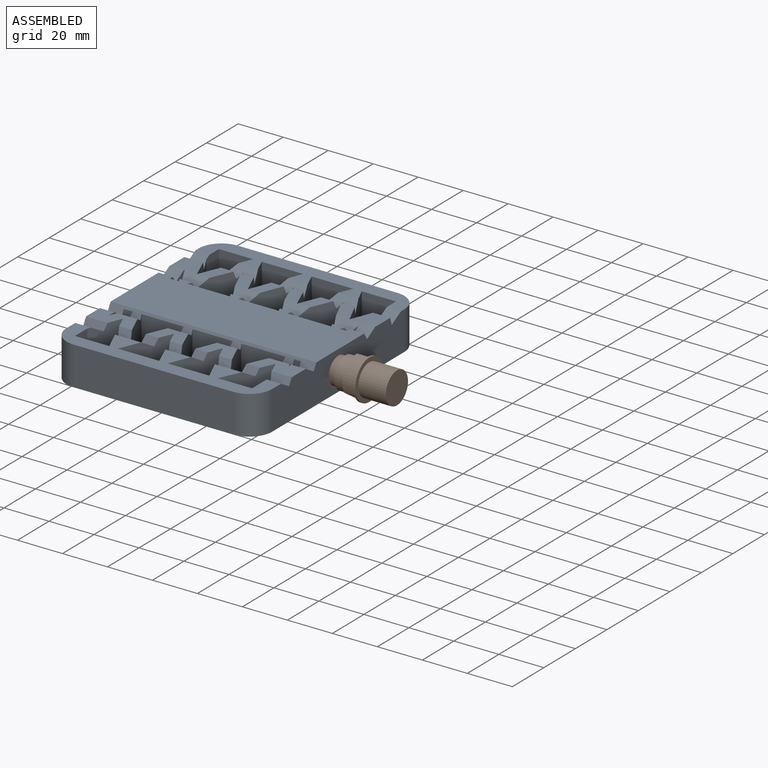
[diagram: assembled view]
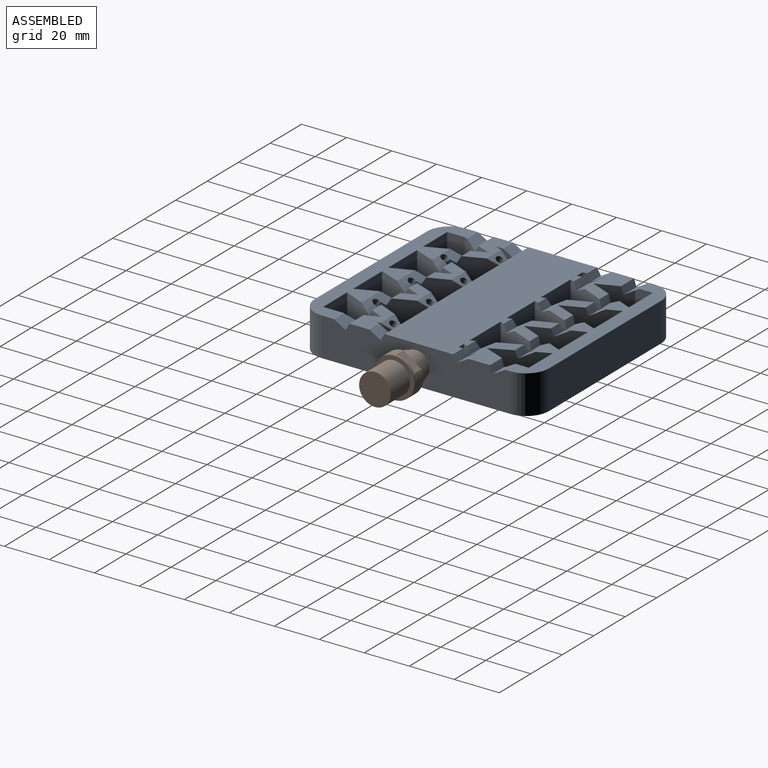
[diagram: assembled view, second angle]
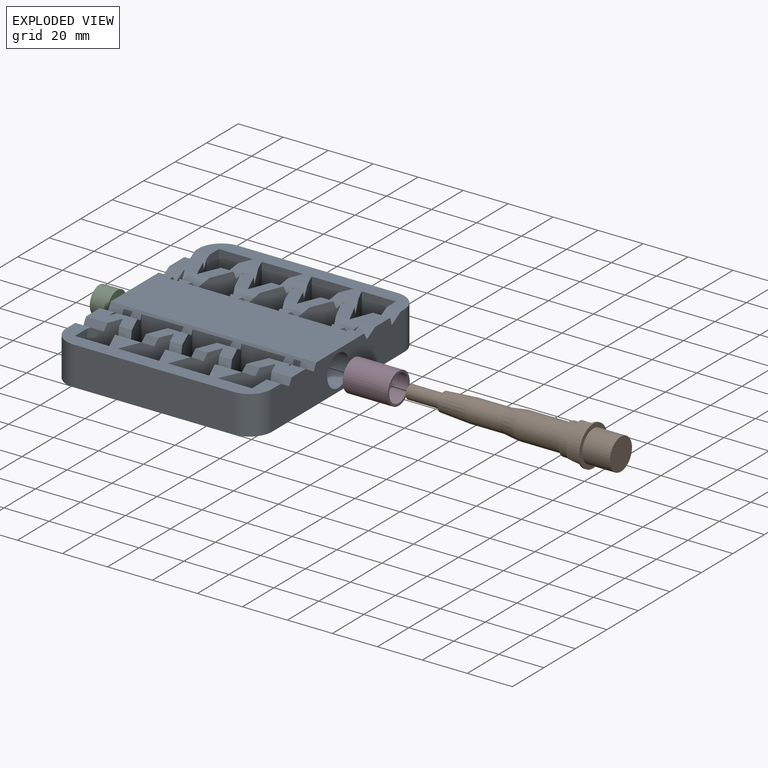
[diagram: exploded view]
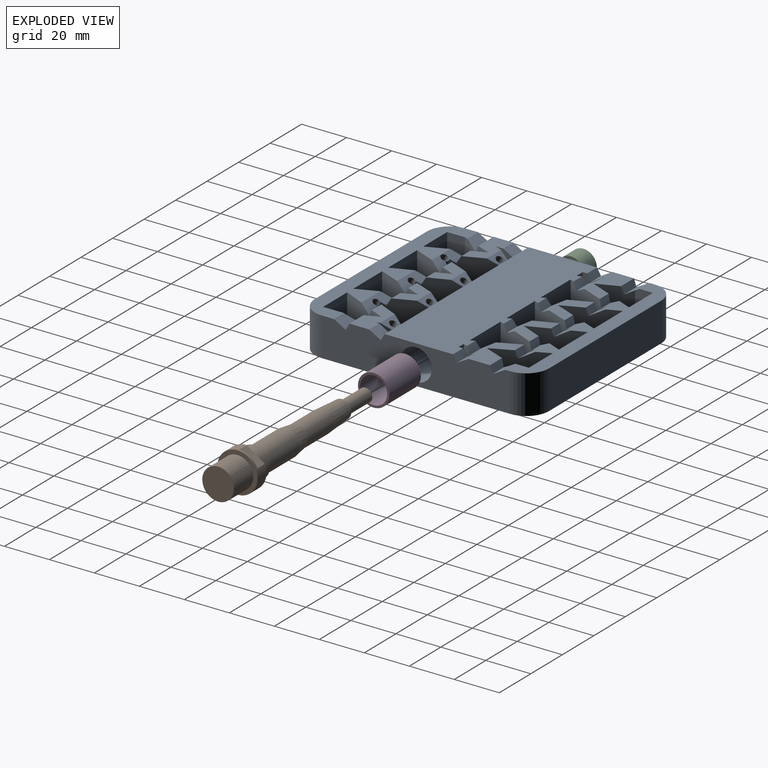
[diagram: exploded view, second angle]
ASSEMBLY  parts=4 mates=5
PART A: 145 faces, bbox 91.8x104.5x19.2 mm
  f0: plane 3.65x2.42mm, normal (0.91,-0.41,0), area 3.6mm2, adj f62,f86,f137
  f1: plane 17.15x12.63mm, normal (-0.93,-0.37,0), area 198.4mm2, adj f35,f61,f77,f86,f105,f106,f137
  f2: plane 22.31x17.15mm, normal (-0.92,-0.39,0), area 380mm2, adj f9,f34,f66,f79,f85,f86,f110,f139
  f3: plane 3.23x2.16mm, normal (0.93,-0.37,0), area 3.6mm2, adj f68,f86,f136
  f4: plane 22.31x17.15mm, normal (-0.92,-0.39,0), area 378.6mm2, adj f32,f67,f69,f85,f86,f107,f108,f136
  f5: plane 3.23x2.13mm, normal (0.92,-0.39,0), area 3.5mm2, adj f71,f86,f138
  f6: plane 22.31x17.15mm, normal (-0.93,-0.37,0), area 375.9mm2, adj f8,f33,f70,f81,f85,f86,f104,f138
  f7: plane 3.13x2.19mm, normal (0.93,-0.37,0), area 2.8mm2, adj f65,f86,f139
  f8: plane 15.44x5.17mm, normal (0,0.5,0.87), area 64.4mm2, adj f6,f51,f53,f79,f85,f103,f104,f134
  f9: plane 16.51x5.17mm, normal (0,0.5,0.87), area 68.8mm2, adj f2,f54,f56,f61,f85,f110,f111,f135
  f10: plane 83.82x17.15mm, normal (1,0,0), area 1241.4mm2, adj f35,f39,f40,f41,f85,f86,f87,f93
  f11: plane 22.31x17.15mm, normal (-0.92,0.39,0), area 403.1mm2, adj f25,f38,f40,f44,f86,f101,f102
  f12: plane 17.15x7.89mm, normal (0.93,-0.37,0), area 135.1mm2, adj f26,f41,f45,f86,f118,f119
  f13: plane 17.15x7.89mm, normal (1,0,0), area 134.2mm2, adj f27,f40,f46,f86,f95
  f14: plane 22.31x17.15mm, normal (-0.92,0.39,0), area 403.1mm2, adj f27,f36,f40,f46,f86,f113,f114
  f15: plane 22.31x17.15mm, normal (0.92,-0.39,0), area 394.7mm2, adj f28,f36,f41,f47,f86,f113,f114,f127
  f16: plane 22.31x17.15mm, normal (-0.93,0.37,0), area 400.2mm2, adj f29,f37,f40,f48,f86,f121,f122
  f17: plane 17.15x9.68mm, normal (1,0,0), area 155.8mm2, adj f18,f36,f41,f82,f86,f96,f97
  f18: plane 17.15x9.68mm, normal (-0.93,-0.37,0), area 167.9mm2, adj f17,f36,f41,f82,f86,f127,f128
  f19: plane 22.31x17.15mm, normal (0.93,-0.37,0), area 391.8mm2, adj f20,f37,f41,f83,f86,f115,f116,f121
  f20: plane 22.31x17.15mm, normal (-0.93,-0.37,0), area 391.8mm2, adj f19,f38,f41,f83,f86,f120,f121,f125
  f21: plane 22.31x17.15mm, normal (0.92,-0.39,0), area 394.7mm2, adj f22,f38,f41,f84,f86,f101,f102,f125
  f22: plane 22.31x17.15mm, normal (-0.91,-0.41,0), area 399.4mm2, adj f21,f39,f41,f84,f86,f100,f101,f118
  f23: plane 17.15x9.68mm, normal (-1,0,0), area 162.1mm2, adj f24,f40,f72,f86,f123
  f24: plane 17.15x12.63mm, normal (-0.93,0.37,0), area 225.5mm2, adj f23,f30,f39,f86,f123,f124
  f25: plane 22.31x17.15mm, normal (0.93,0.37,0), area 400.2mm2, adj f11,f38,f40,f44,f86,f120,f121
  f26: plane 17.15x7.89mm, normal (-1,0,0), area 125.3mm2, adj f12,f41,f45,f86,f117,f118
  f27: plane 17.15x14.41mm, normal (0.93,0.37,0), area 255.5mm2, adj f13,f14,f36,f86,f94,f95
  f28: plane 22.31x17.15mm, normal (-0.92,-0.39,0), area 394.7mm2, adj f15,f37,f41,f47,f86,f112,f113,f115
  f29: plane 22.31x17.15mm, normal (0.92,0.39,0), area 403.1mm2, adj f16,f37,f40,f48,f86,f112,f113
  f30: plane 22.31x17.15mm, normal (0.91,0.41,0), area 407.9mm2, adj f24,f39,f40,f72,f86,f100,f101
  f31: plane 83.82x17.15mm, normal (-1,0,0), area 1282.2mm2, adj f32,f36,f40,f41,f85,f86,f87,f88
  f32: plane 20.41x8.75mm, normal (0,0,1), area 144.5mm2, adj f4,f31,f49,f50,f67,f76,f88,f92
  f33: plane 16.22x8.75mm, normal (0,0,1), area 94.7mm2, adj f6,f53,f58,f70,f90,f104,f109
  f34: plane 16.22x8.75mm, normal (0,0,1), area 94.7mm2, adj f2,f51,f54,f79,f89,f103,f110
  f35: plane 20.18x8.75mm, normal (0,0,1), area 142.4mm2, adj f1,f10,f56,f61,f63,f78,f91,f93
  f36: plane 21.82x9.55mm, normal (0,0,1), area 151.9mm2, adj f14,f15,f17,f18,f27,f31,f94,f97
  f37: plane 18.97x9.55mm, normal (0,0,1), area 106.4mm2, adj f16,f19,f28,f29,f112,f116,f122
  f38: plane 18.97x9.55mm, normal (0,0,1), area 106.4mm2, adj f11,f20,f21,f25,f102,f120,f126
  f39: plane 21.7x9.55mm, normal (0,0,1), area 147.9mm2, adj f10,f22,f24,f30,f100,f118,f124
  f40: plane 91.44x12.3mm, normal (0,0,1), area 724.7mm2, adj f10,f11,f13,f14,f16,f23,f25,f29
  f41: plane 91.44x30.42mm, normal (0,0,1), area 2664.8mm2, adj f10,f12,f15,f17,f18,f19,f20,f21
  f42: plane 71.12x17.15mm, normal (0,-1,0), area 1219.4mm2, adj f85,f86,f129,f132
  f43: plane 71.12x17.15mm, normal (0,1,0), area 1219.4mm2, adj f40,f86,f130,f131
  f44: plane 18.42x17.15mm, normal (0,-1,0), area 315.7mm2, adj f11,f25,f40,f86
  f45: plane 17.15x3.18mm, normal (0,1,0), area 54.4mm2, adj f12,f26,f41,f86
  f46: plane 17.15x15.24mm, normal (0,-1,0), area 261.3mm2, adj f13,f14,f40,f86
  f47: plane 18.88x17.15mm, normal (0,1,0), area 323.7mm2, adj f15,f28,f41,f86
  f48: plane 18.42x17.15mm, normal (0,-1,0), area 315.7mm2, adj f16,f29,f40,f86
  f49: plane 17.15x9.68mm, normal (-0.93,0.37,0), area 168.2mm2, adj f32,f50,f73,f86,f87,f92
  f50: plane 17.15x9.68mm, normal (1,0,0), area 156.1mm2, adj f32,f49,f73,f86,f87,f88
  f51: plane 19.35x17.23mm, normal (-0.93,0.37,0), area 335.6mm2, adj f8,f34,f52,f74,f86,f87,f89,f103
  f52: cylinder r=3.28mm len=13.42mm, axis (0,0,-1), area 32.5mm2, adj f51,f53,f86,f134
  f53: plane 19.35x17.23mm, normal (0.93,0.37,0), area 335.7mm2, adj f8,f33,f52,f74,f86,f87,f90,f104
  f54: plane 19.5x17.27mm, normal (0.92,0.39,0), area 340.3mm2, adj f9,f34,f55,f75,f86,f87,f89,f110
  f55: plane 19.6x16.11mm, normal (0,-1,0), area 315.7mm2, adj f54,f56,f86,f87
  f56: plane 19.53x17.27mm, normal (-0.91,0.41,0), area 344.3mm2, adj f9,f35,f55,f75,f86,f87,f91,f111
  f57: plane 18.88x16.11mm, normal (0,-1,0), area 304.1mm2, adj f58,f76,f86,f87
  f58: plane 19.09x17.15mm, normal (-0.92,0.39,0), area 336mm2, adj f33,f57,f59,f86,f87,f90,f108,f109
  f59: cylinder r=3.49mm len=15.53mm, axis (0,0,-1), area 43.4mm2, adj f58,f76,f86,f108
  f60: plane 17.15x15.24mm, normal (0,1,0), area 261.3mm2, adj f61,f77,f85,f86
  f61: plane 22.32x17.16mm, normal (0.91,-0.41,0), area 382.4mm2, adj f1,f9,f35,f60,f85,f86,f111,f137
  f62: plane 3.31x2.45mm, normal (-0.93,-0.37,0), area 4mm2, adj f0,f86,f137
  f63: plane 17.15x7.89mm, normal (0.93,0.37,0), area 135.2mm2, adj f35,f64,f78,f86,f87,f91
  f64: plane 16.11x3.18mm, normal (0,-1,0), area 51.1mm2, adj f63,f78,f86,f87
  f65: plane 3.06x2mm, normal (-0.92,-0.39,0), area 2.6mm2, adj f7,f86,f139
  f66: plane 18.42x17.15mm, normal (0,1,0), area 315.7mm2, adj f2,f79,f85,f86
  f67: plane 17.15x14.41mm, normal (0.93,-0.37,0), area 230.1mm2, adj f4,f32,f80,f85,f86,f98,f99,f136
  f68: plane 3.23x2.13mm, normal (-0.92,-0.39,0), area 3.5mm2, adj f3,f86,f136
  f69: plane 17.15x15.24mm, normal (0,1,0), area 261.3mm2, adj f4,f80,f85,f86
  f70: plane 22.31x17.15mm, normal (0.92,-0.39,0), area 378.6mm2, adj f6,f33,f81,f85,f86,f108,f109,f138
  f71: plane 3.23x2.16mm, normal (-0.93,-0.37,0), area 3.6mm2, adj f5,f86,f138
  f72: plane 17.15x15.24mm, normal (0,-1,0), area 261.3mm2, adj f23,f30,f40,f86
  f73: plane 16.11x3.89mm, normal (0,-1,0), area 62.7mm2, adj f49,f50,f86,f87
  f74: plane 17.95x16.11mm, normal (0,-1,0), area 289.1mm2, adj f51,f53,f86,f87
  f75: cylinder r=3.18mm len=13.72mm, axis (0,0,-1), area 33.8mm2, adj f54,f56,f86,f135
  f76: plane 19.09x17.15mm, normal (0.92,0.39,0), area 336mm2, adj f32,f57,f59,f86,f87,f92,f107,f108
  f77: plane 17.15x9.68mm, normal (-1,0,0), area 165.9mm2, adj f1,f60,f85,f86,f105
  f78: plane 17.15x7.89mm, normal (-1,0,0), area 125.4mm2, adj f35,f63,f64,f86,f87,f93
  f79: plane 22.31x17.15mm, normal (0.93,-0.37,0), area 378.1mm2, adj f2,f8,f34,f66,f85,f86,f103,f139
  f80: plane 17.15x7.89mm, normal (1,0,0), area 135.3mm2, adj f67,f69,f85,f86
  f81: plane 18.42x17.15mm, normal (0,1,0), area 315.7mm2, adj f6,f70,f85,f86
  f82: plane 17.15x3.89mm, normal (0,1,0), area 66.8mm2, adj f17,f18,f41,f86
  f83: plane 17.95x17.15mm, normal (0,1,0), area 307.7mm2, adj f19,f20,f41,f86
  f84: plane 19.6x17.15mm, normal (0,1,0), area 336.1mm2, adj f21,f22,f41,f86
  f85: plane 91.44x15.63mm, normal (0,0,1), area 869.8mm2, adj f2,f4,f6,f8,f9,f10,f31,f42
  f86: plane 104.55x91.85mm, normal (0,0,-1), area 6494.9mm2, adj f0,f1,f2,f3,f4,f5,f6,f7
  f87: plane 91.44x2.97mm, normal (0,-0.87,0.5), area 175.8mm2, adj f10,f31,f41,f49,f50,f51,f53,f54
  f88: plane 6.35x5.17mm, normal (0,0.5,0.87), area 37.8mm2, adj f31,f32,f50,f87
  f89: plane 8.99x5.17mm, normal (0,0.5,0.87), area 31.9mm2, adj f34,f51,f54,f87,f139
  f90: plane 8.99x5.17mm, normal (0,0.5,0.87), area 31.9mm2, adj f33,f53,f58,f87,f138
  f91: plane 9.19x5.17mm, normal (0,0.5,0.87), area 32.6mm2, adj f35,f56,f63,f87,f137
  f92: plane 8.99x5.17mm, normal (0,0.5,0.87), area 31.9mm2, adj f32,f49,f76,f87,f136
  f93: plane 6.35x5.17mm, normal (0,0.5,0.87), area 37.8mm2, adj f10,f35,f78,f87
  f94: plane 8.33x3.25mm, normal (0,0.95,0.31), area 27.8mm2, adj f27,f31,f36,f95
  f95: plane 7.91x5.81mm, normal (0,-0.49,0.87), area 45.7mm2, adj f13,f27,f31,f40,f94
  f96: plane 6.35x2.97mm, normal (0,0.87,0.5), area 21.7mm2, adj f17,f31,f41,f97
  f97: plane 6.35x5.17mm, normal (0,-0.5,0.87), area 37.8mm2, adj f17,f31,f36,f96
  f98: plane 9.67x2.97mm, normal (0,-0.87,0.5), area 31.9mm2, adj f31,f32,f67,f99
  f99: plane 8.99x5.17mm, normal (0,0.5,0.87), area 47.4mm2, adj f31,f67,f85,f98
  f100: plane 6.43x3.25mm, normal (0,0.95,0.31), area 20.3mm2, adj f22,f30,f39,f101
  f101: plane 14.15x5.81mm, normal (0,-0.49,0.87), area 73mm2, adj f11,f21,f22,f30,f40,f100,f102
  f102: plane 6.11x3.25mm, normal (0,0.95,0.31), area 19.4mm2, adj f11,f21,f38,f101
  f103: plane 6.16x2.97mm, normal (0,-0.87,0.5), area 18.7mm2, adj f8,f34,f51,f79
  f104: plane 6.16x2.97mm, normal (0,-0.87,0.5), area 18.7mm2, adj f6,f8,f33,f53
  f105: plane 8.27x5.17mm, normal (0,0.5,0.87), area 43.1mm2, adj f1,f10,f77,f85,f106
  f106: plane 8.96x2.97mm, normal (0,-0.87,0.5), area 29.5mm2, adj f1,f10,f35,f105
  f107: plane 6.38x2.97mm, normal (0,-0.87,0.5), area 19.4mm2, adj f4,f32,f76,f108
  f108: plane 16.36x5.48mm, normal (0,0.5,0.87), area 64mm2, adj f4,f58,f59,f70,f76,f85,f107,f109
  f109: plane 6.38x2.97mm, normal (0,-0.87,0.5), area 19.4mm2, adj f33,f58,f70,f108
  f110: plane 6.38x2.97mm, normal (0,-0.87,0.5), area 19.4mm2, adj f2,f9,f34,f54
  f111: plane 6.72x2.97mm, normal (0,-0.87,0.5), area 20.3mm2, adj f9,f35,f56,f61
  f112: plane 6.11x3.25mm, normal (0,0.95,0.31), area 19.4mm2, adj f28,f29,f37,f113
  f113: plane 13.77x5.81mm, normal (0,-0.49,0.87), area 71.3mm2, adj f14,f15,f28,f29,f40,f112,f114
  f114: plane 6.11x3.25mm, normal (0,0.95,0.31), area 19.4mm2, adj f14,f15,f36,f113
  f115: plane 6.81x2.97mm, normal (0,0.87,0.5), area 20.9mm2, adj f19,f28,f41,f116
  f116: plane 11.08x5.17mm, normal (0,-0.5,0.87), area 53.3mm2, adj f19,f28,f37,f115
  f117: plane 6.35x2.97mm, normal (0,0.87,0.5), area 21.7mm2, adj f10,f26,f41,f118
  f118: plane 17.35x5.17mm, normal (0,-0.5,0.87), area 92.2mm2, adj f10,f12,f22,f26,f39,f117,f119
  f119: plane 6.93x2.97mm, normal (0,0.87,0.5), area 21.2mm2, adj f12,f22,f41,f118
  f120: plane 5.9x3.25mm, normal (0,0.95,0.31), area 18.7mm2, adj f20,f25,f38,f121
  f121: plane 13.28x5.81mm, normal (0,-0.49,0.87), area 69mm2, adj f16,f19,f20,f25,f40,f120,f122
  f122: plane 5.9x3.25mm, normal (0,0.95,0.31), area 18.7mm2, adj f16,f19,f37,f121
  f123: plane 7.19x5.81mm, normal (0,-0.49,0.87), area 43.3mm2, adj f10,f23,f24,f40,f124
  f124: plane 7.61x3.25mm, normal (0,0.95,0.31), area 25.3mm2, adj f10,f24,f39,f123
  f125: plane 6.81x2.97mm, normal (0,0.87,0.5), area 20.9mm2, adj f20,f21,f41,f126
  f126: plane 11.08x5.17mm, normal (0,-0.5,0.87), area 53.3mm2, adj f20,f21,f38,f125
  f127: plane 11.08x5.17mm, normal (0,-0.5,0.87), area 53.3mm2, adj f15,f18,f36,f128
  f128: plane 6.81x2.97mm, normal (0,0.87,0.5), area 20.9mm2, adj f15,f18,f41,f127
  f129: cylinder r=10.16mm len=17.15mm, axis (0,0,1), area 273.6mm2, adj f10,f42,f85,f86
  f130: cylinder r=10.16mm len=17.15mm, axis (0,0,-1), area 273.6mm2, adj f10,f40,f43,f86
  f131: cylinder r=10.16mm len=17.15mm, axis (0,0,1), area 273.6mm2, adj f31,f40,f43,f86
  f132: cylinder r=10.16mm len=17.15mm, axis (0,0,-1), area 273.6mm2, adj f31,f42,f85,f86
  f133: cylinder r=1.69mm len=18.79mm, axis (0,0.5,0.87), area 199.5mm2, adj f86,f108
  f134: cylinder r=1.69mm len=18.2mm, axis (0,0.5,0.87), area 185.3mm2, adj f8,f51,f52,f53,f86
  f135: cylinder r=1.69mm len=18.2mm, axis (0,0.5,0.87), area 184.2mm2, adj f9,f54,f56,f75,f86
  f136: cylinder r=1.69mm len=17.46mm, axis (0,0.5,0.87), area 162.9mm2, adj f3,f4,f67,f68,f86,f92
  f137: cylinder r=1.69mm len=17.49mm, axis (0,0.5,0.87), area 161.2mm2, adj f0,f1,f61,f62,f86,f91
  f138: cylinder r=1.69mm len=17.46mm, axis (0,0.5,0.87), area 162.9mm2, adj f5,f6,f70,f71,f86,f90
  f139: cylinder r=1.69mm len=17.47mm, axis (0,0.5,0.87), area 164.6mm2, adj f2,f7,f65,f79,f86,f89
  f140: cylinder r=7mm len=25.4mm, axis (1,0,0), area 1117.2mm2, adj f10,f141
  f141: cone r=4.57mm half-angle=5deg, axis (1,0,0), area 1010.4mm2, adj f140,f142
  f142: cylinder r=4.57mm len=9.14mm, axis (1,0,0), area 73mm2, adj f141,f143
  f143: plane 12x12mm, normal (-1,0,0), area 47.4mm2, adj f142,f144
  f144: cylinder r=6mm len=35.81mm, axis (1,0,0), area 1350.2mm2, adj f31,f143
PART B: 18 faces, bbox 93.6x17.9x17.9 mm
  f0: plane 17.88x15.01mm, normal (1,0,0), area 80.6mm2, adj f1,f11,f14,f17
  f1: cylinder r=8.94mm len=17.88mm, axis (-1,0,0), area 219.2mm2, adj f0,f12,f14,f15,f16,f17
  f2: plane 14.07x14.07mm, normal (-1,0,0), area 155.5mm2, adj f13
  f3: plane 5.99x5.99mm, normal (1,0,0), area 28.2mm2, adj f4
  f4: cylinder r=3mm len=14.88mm, axis (-1,0,0), area 280.3mm2, adj f3,f5
  f5: plane 8.26x8.26mm, normal (1,0,0), area 25.3mm2, adj f4,f6
  f6: cone r=5mm half-angle=3.8deg, axis (-1,0,0), area 383.4mm2, adj f5,f7
  f7: cylinder r=5mm len=15.24mm, axis (-1,0,0), area 479.1mm2, adj f6,f8
  f8: cone r=5.96mm half-angle=7.9deg, axis (-1,0,0), area 237.5mm2, adj f7,f9
  f9: cylinder r=5.96mm len=20.32mm, axis (-1,0,0), area 760.5mm2, adj f8,f10
  f10: plane 13.89x13.89mm, normal (1,0,0), area 40.2mm2, adj f9,f11
  f11: cylinder r=6.95mm len=13.89mm, axis (-1,0,0), area 221.7mm2, adj f0,f10
  f12: plane 17.88x17.88mm, normal (-1,0,0), area 95.6mm2, adj f1,f13
  f13: cylinder r=7.04mm len=14.07mm, axis (-1,0,0), area 542.3mm2, adj f2,f12
  f14: plane 9.72x4.75mm, normal (0,-1,0), area 46.2mm2, adj f0,f1,f15
  f15: plane 9.72x1.44mm, normal (1,0,0), area 9.5mm2, adj f1,f14
  f16: plane 9.72x1.44mm, normal (1,0,0), area 9.5mm2, adj f1,f17
  f17: plane 9.72x4.75mm, normal (0,1,0), area 46.2mm2, adj f0,f1,f16
PART C: 4 faces, bbox 12x8x12 mm
  f0: cylinder r=3mm len=8mm, axis (0,-1,0), area 150.8mm2, adj f2,f3
  f1: cylinder r=6mm len=12mm, axis (0,-1,0), area 301.6mm2, adj f2,f3
  f2: plane 12x12mm, normal (0,1,0), area 84.8mm2, adj f0,f1
  f3: plane 12x12mm, normal (0,-1,0), area 84.8mm2, adj f0,f1
PART D: 4 faces, bbox 14x20x14 mm
  f0: cylinder r=6mm len=20mm, axis (0,-1,0), area 754mm2, adj f2,f3
  f1: cylinder r=7mm len=20mm, axis (0,-1,0), area 879.6mm2, adj f2,f3
  f2: plane 14x14mm, normal (0,1,0), area 40.8mm2, adj f0,f1
  f3: plane 14x14mm, normal (0,-1,0), area 40.8mm2, adj f0,f1
PLACE A t=(0,-13.05,-27.21)mm fixed
PLACE B rot(axis=(0,-0.88,-0.47),180deg) t=(59.53,-13.05,-18.64)mm
PLACE C rot(axis=(-0.58,0.58,0.58),120deg) t=(-9.91,-13.05,-18.64)mm
PLACE D rot(axis=(0.71,-0.71,0),180deg) t=(45.72,-13.05,-18.64)mm
MATE cylindrical B.f1 <-> D.f1  axis (1,0,0) through (38.66,-13.05,-18.64)mm
MATE cylindrical C.f0 <-> A.f140  axis (1,0,0) through (-17.91,-13.05,-18.64)mm
MATE cylindrical D.f1 <-> A.f140  axis (1,0,0) through (35.72,-13.05,-18.64)mm
MATE planar C.f1 <-> A.f140  axis (1,0,0) through (-9.91,-13.05,-18.64)mm
MATE planar A.f10 <-> D.f1  axis (1,0,0) through (45.72,-13.13,-18.89)mm
